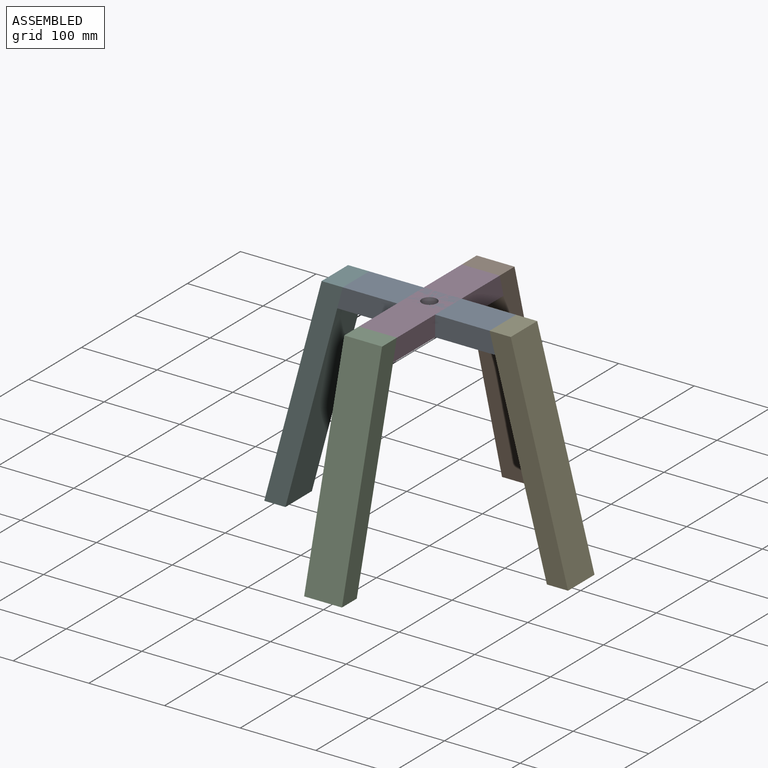
[diagram: assembled view]
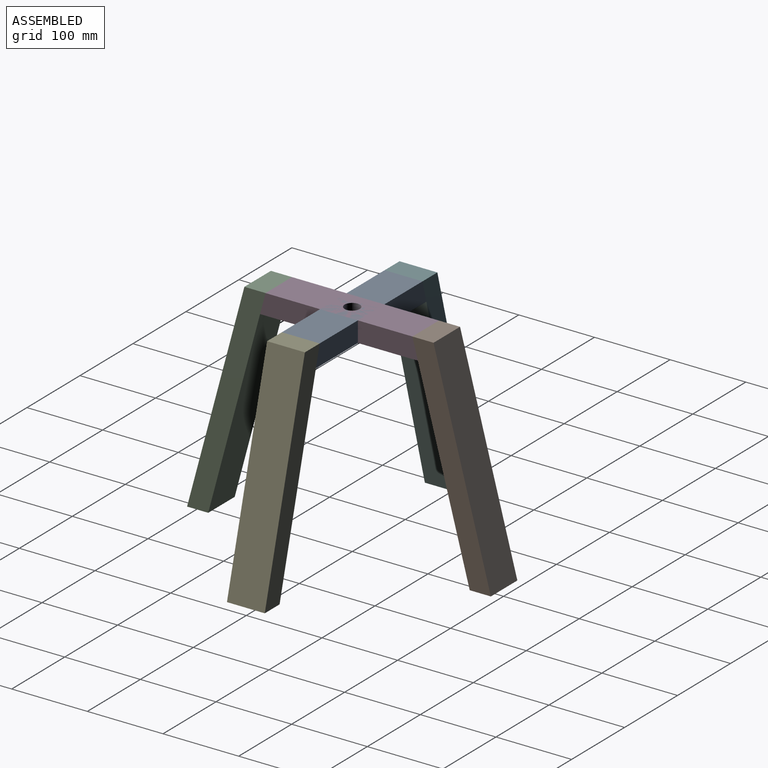
[diagram: assembled view, second angle]
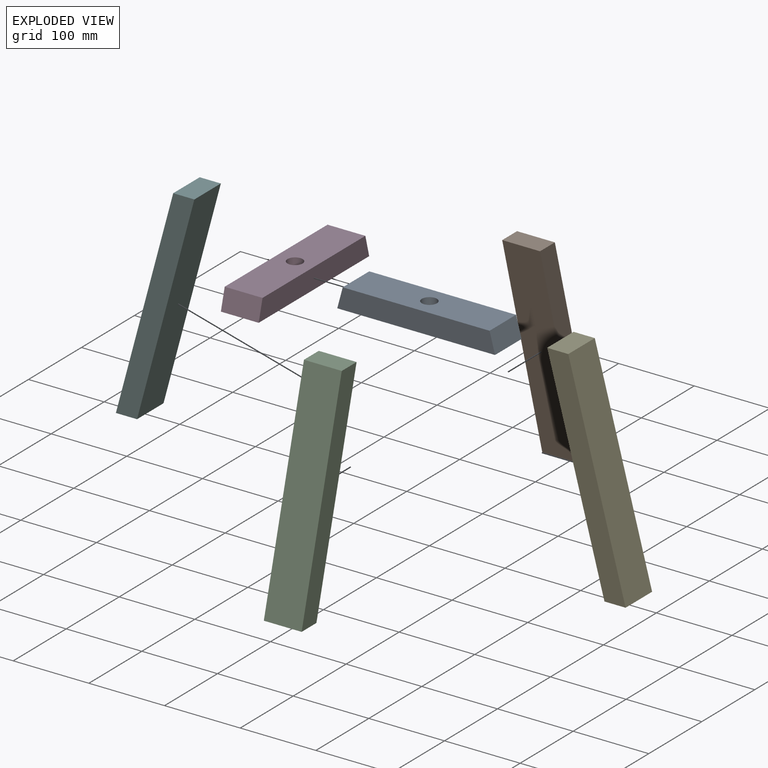
[diagram: exploded view]
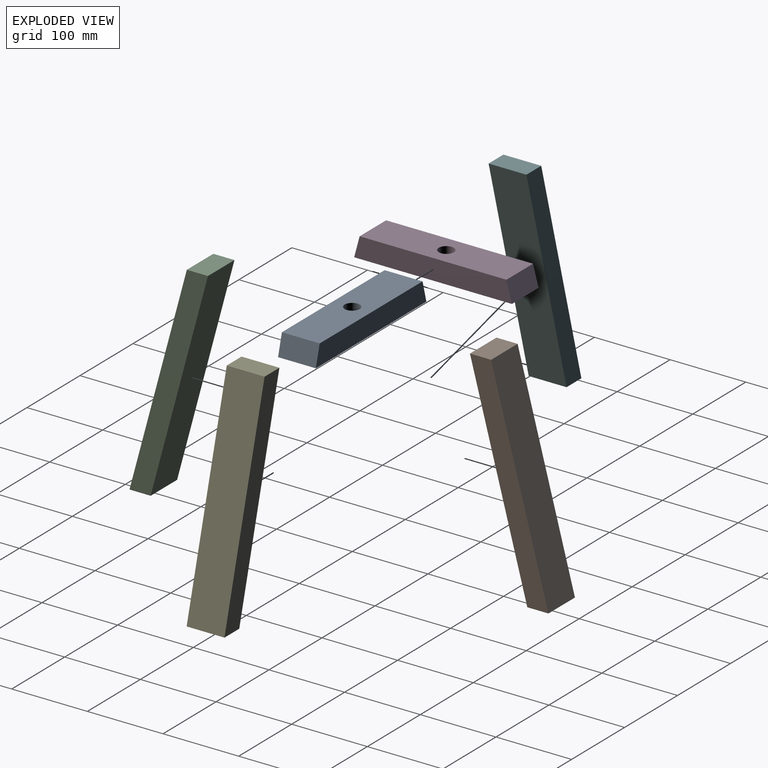
[diagram: exploded view, second angle]
ASSEMBLY  parts=6 mates=2
PART A: 7 faces, bbox 208.6x50x27 mm
  f0: plane 208.56x50mm, normal (0,0,-1), area 10114.1mm2, adj f2,f3,f4,f5,f6
  f1: plane 194.1x50mm, normal (0,0,1), area 9390.6mm2, adj f2,f3,f4,f5,f6
  f2: plane 208.56x27mm, normal (0,-1,0), area 5435.9mm2, adj f0,f1,f4,f5
  f3: plane 208.56x27mm, normal (0,1,0), area 5435.9mm2, adj f0,f1,f4,f5
  f4: plane 50x27mm, normal (0.97,0,0.26), area 1397.6mm2, adj f0,f1,f2,f3
  f5: plane 50x27mm, normal (-0.97,0,0.26), area 1397.6mm2, adj f0,f1,f2,f3
  f6: cylinder r=10mm len=27mm, axis (0,0,1), area 1696.5mm2, adj f0,f1
PART B: 6 faces, bbox 103.7x50x282.8 mm
  f0: plane 282.79x103.73mm, normal (0,-1,0), area 7904.7mm2, adj f2,f3,f4,f5
  f1: plane 282.79x103.73mm, normal (0,1,0), area 7904.7mm2, adj f2,f3,f4,f5
  f2: plane 282.79x75.77mm, normal (-0.97,0,0.26), area 14638.3mm2, adj f0,f1,f4,f5
  f3: plane 282.79x75.77mm, normal (0.97,0,-0.26), area 14638.3mm2, adj f0,f1,f4,f5
  f4: plane 50x27.95mm, normal (0,0,-1), area 1397.6mm2, adj f0,f1,f2,f3
  f5: plane 50x27.95mm, normal (0,0,1), area 1397.6mm2, adj f0,f1,f2,f3
PART C: same geometry as B
PART D: same geometry as A
PART E: same geometry as B
PART F: same geometry as B
PLACE A at identity fixed
PLACE B rot(axis=(0,0,-1),90deg) t=(0,0,0)mm
PLACE C rot(axis=(0,0,1),90deg) t=(0,0,0)mm
PLACE D rot(axis=(0,0,1),90deg) t=(0,0,0)mm
PLACE E rot(axis=(0,0,1),180deg) t=(0,0,0)mm
PLACE F at identity
MATE fastened A.f4 <-> E.f3  axis (0.97,0,0.26) through (97.05,0,13.5)mm
MATE fastened F.f3 <-> A.f5  axis (0.97,0,-0.26) through (-97.05,0,13.5)mm
